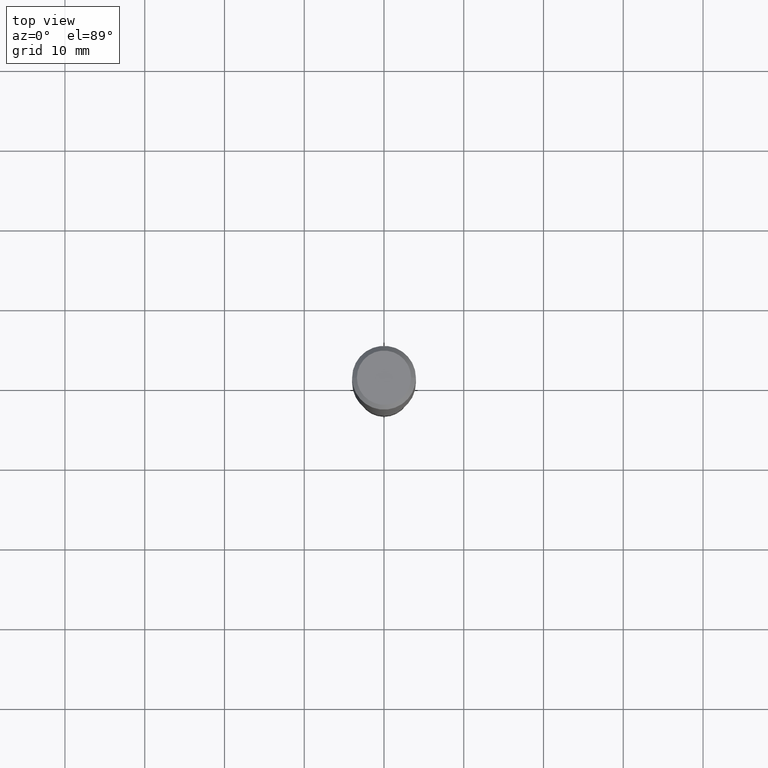
[diagram: clean part render]
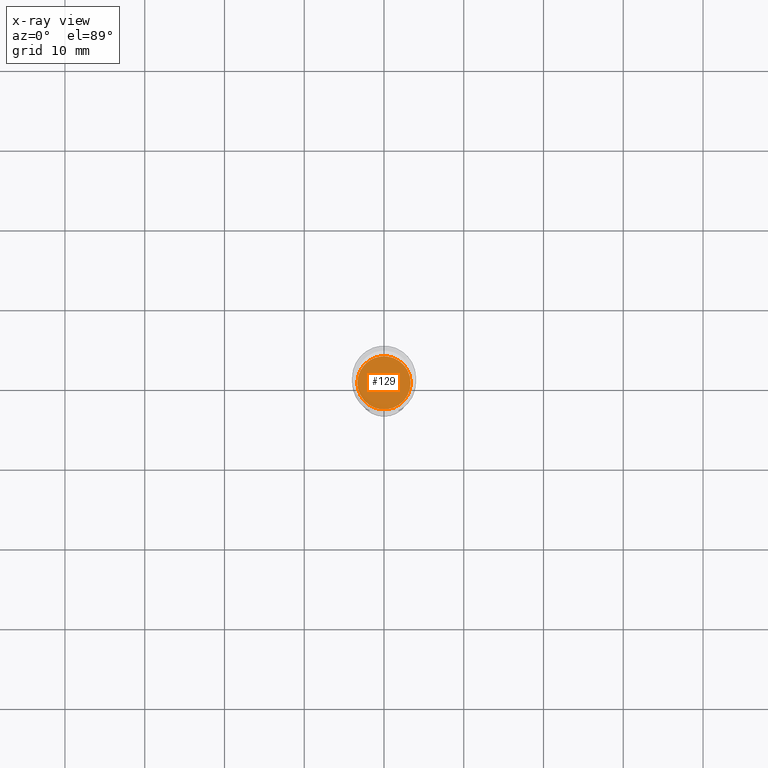
[diagram: x-ray — body ghosted, one internal face saturated and labeled with its STEP entity id]
A machine part, top view, then the same camera in x-ray: the body is ghosted and one INTERNAL B-rep face — a face not visible from any outside direction — is saturated and labeled: STEP entity #129.
In plain terms, the highlighted planar face has unit normal (-0, 0, 1).
Its self-contained STEP definition (entity closure, byte-faithful):
#12 = EDGE_CURVE ( 'NONE', #249, #84, #26, .T. ) ;
#26 = CIRCLE ( 'NONE', #231, 0.1313999999999999890 ) ;
#33 = DIRECTION ( 'NONE',  ( -2.445468806185136597E-29, 3.491481338843145583E-15, 1.000000000000000000 ) ) ;
#42 = EDGE_LOOP ( 'NONE', ( #485, #162 ) ) ;
#80 = AXIS2_PLACEMENT_3D ( 'NONE', #326, #126, #439 ) ;
#84 = VERTEX_POINT ( 'NONE', #345 ) ;
#125 = AXIS2_PLACEMENT_3D ( 'NONE', #267, #189, #271 ) ;
#126 = DIRECTION ( 'NONE',  ( -2.445468806185136597E-29, 3.491481338843145583E-15, 1.000000000000000000 ) ) ;
#129 = ADVANCED_FACE ( 'NONE', ( #228 ), #357, .F. ) ;
#162 = ORIENTED_EDGE ( 'NONE', *, *, #333, .F. ) ;
#183 = DIRECTION ( 'NONE',  ( 1.000000000000000000, -6.982962677686265133E-15, 0.000000000000000000 ) ) ;
#189 = DIRECTION ( 'NONE',  ( -2.438088387897960049E-29, 3.491481338843145188E-15, 1.000000000000000000 ) ) ;
#228 = FACE_OUTER_BOUND ( 'NONE', #42, .T. ) ;
#231 = AXIS2_PLACEMENT_3D ( 'NONE', #384, #33, #183 ) ;
#249 = VERTEX_POINT ( 'NONE', #392 ) ;
#267 = CARTESIAN_POINT ( 'NONE',  ( 1.486955544557679650E-29, -8.335716098366654427E-15, -1.496400000000000396 ) ) ;
#271 = DIRECTION ( 'NONE',  ( 1.000000000000000000, -6.982962677686265922E-15, 4.876176775795935793E-29 ) ) ;
#326 = CARTESIAN_POINT ( 'NONE',  ( 3.659399521575439863E-29, -5.224652675444884140E-15, -1.496400000000000396 ) ) ;
#333 = EDGE_CURVE ( 'NONE', #84, #249, #395, .T. ) ;
#345 = CARTESIAN_POINT ( 'NONE',  ( -0.1313999999999999890, -4.288350293482001570E-15, -1.496400000000000396 ) ) ;
#357 = PLANE ( 'NONE',  #125 ) ;
#384 = CARTESIAN_POINT ( 'NONE',  ( 3.659399521575439863E-29, -5.224652675444884140E-15, -1.496400000000000396 ) ) ;
#392 = CARTESIAN_POINT ( 'NONE',  ( 0.1313999999999999890, -6.142213971292859548E-15, -1.496400000000000396 ) ) ;
#395 = CIRCLE ( 'NONE', #80, 0.1313999999999999890 ) ;
#439 = DIRECTION ( 'NONE',  ( 1.000000000000000000, -6.982962677686265133E-15, 0.000000000000000000 ) ) ;
#485 = ORIENTED_EDGE ( 'NONE', *, *, #12, .F. ) ;